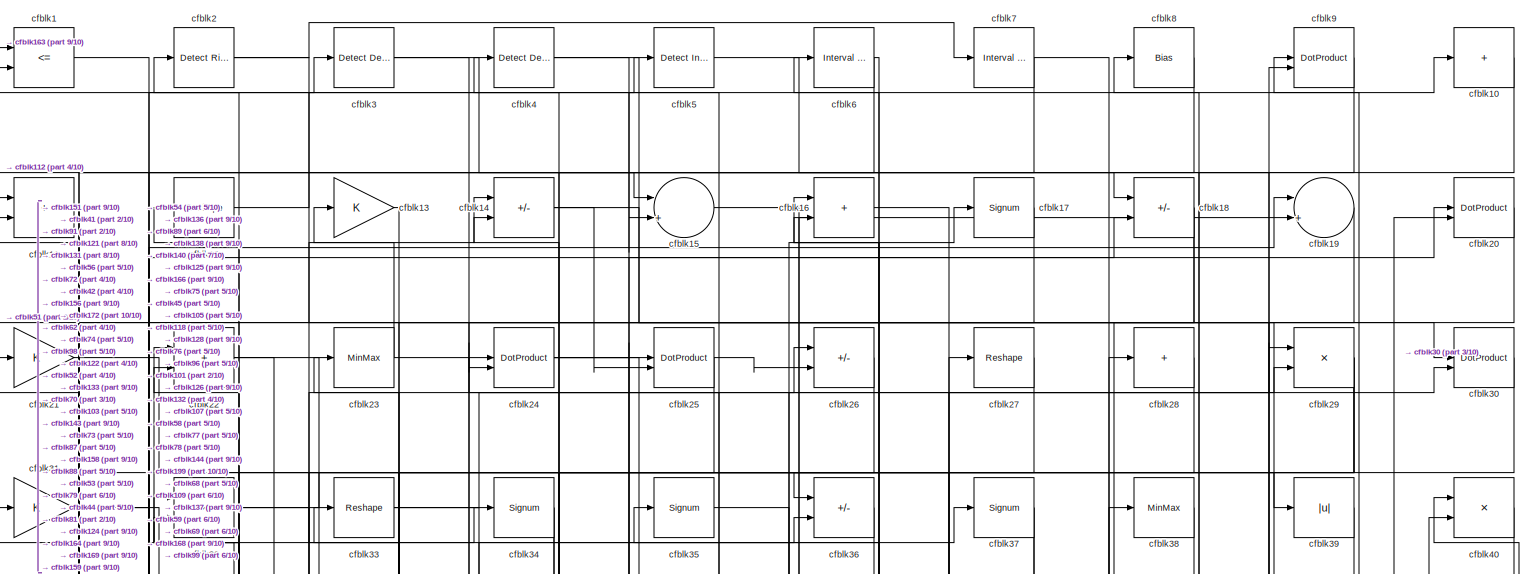
[diagram: root canvas - part 1/10, full width, top band]
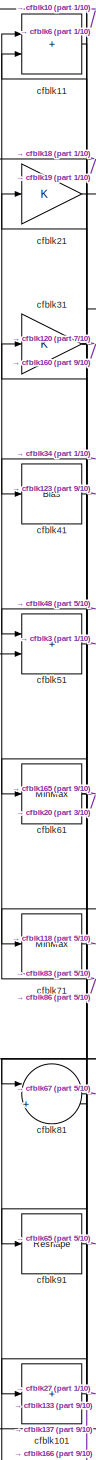
[diagram: root canvas - part 2/10, top left region]
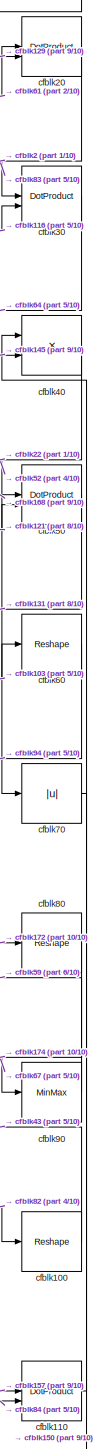
[diagram: root canvas - part 3/10, top right region]
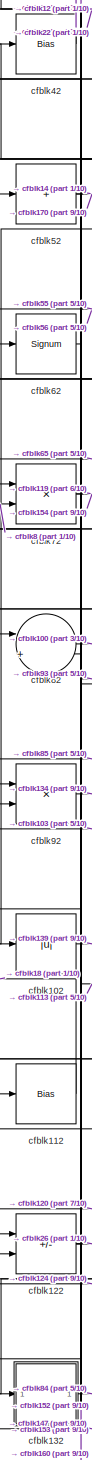
[diagram: root canvas - part 4/10, middle left region]
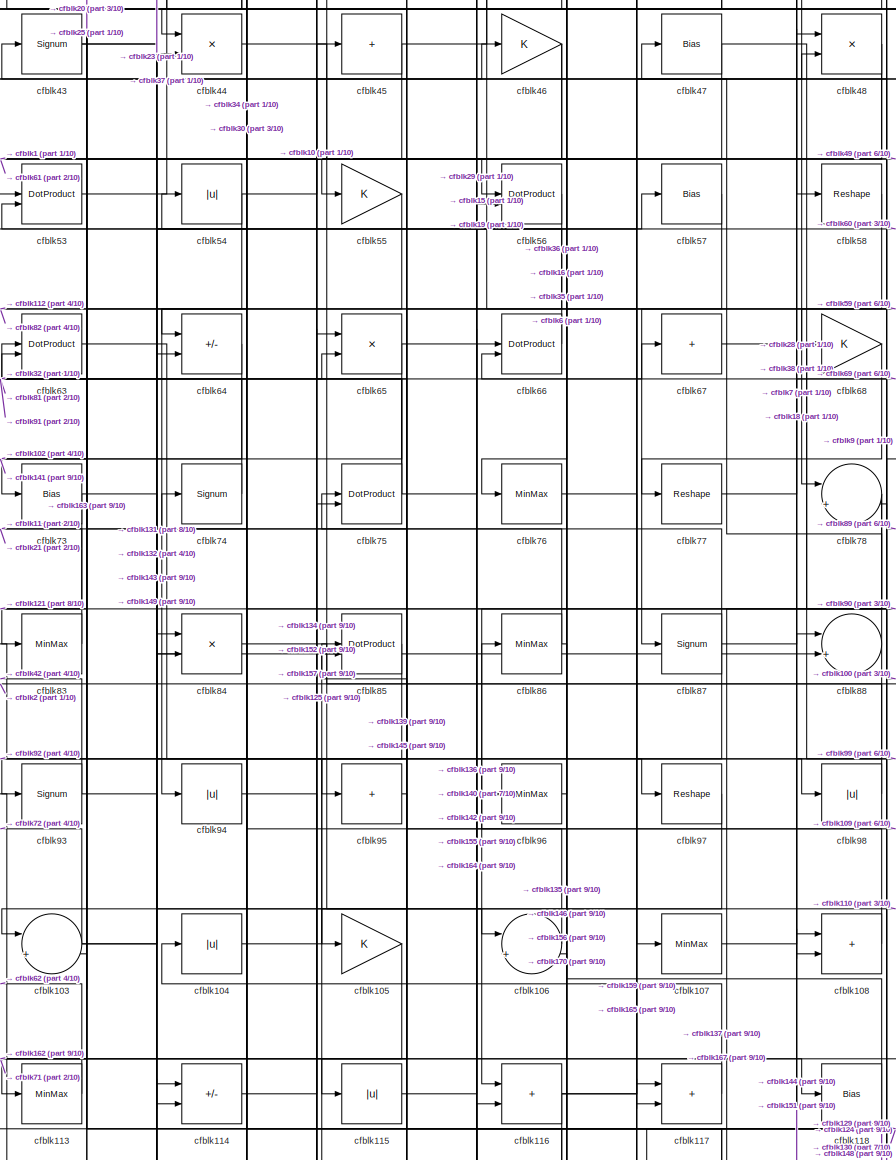
[diagram: root canvas - part 5/10, central region]
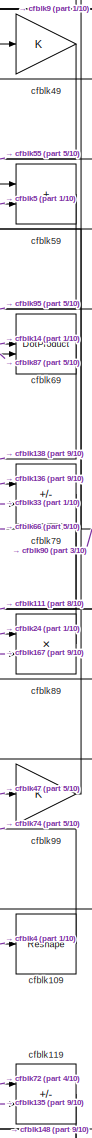
[diagram: root canvas - part 6/10, middle right region]
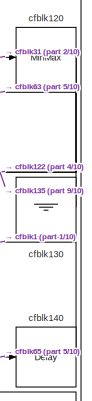
[diagram: root canvas - part 7/10, middle right region]
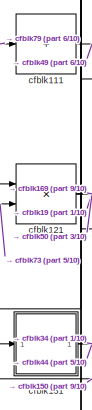
[diagram: root canvas - part 8/10, middle left region]
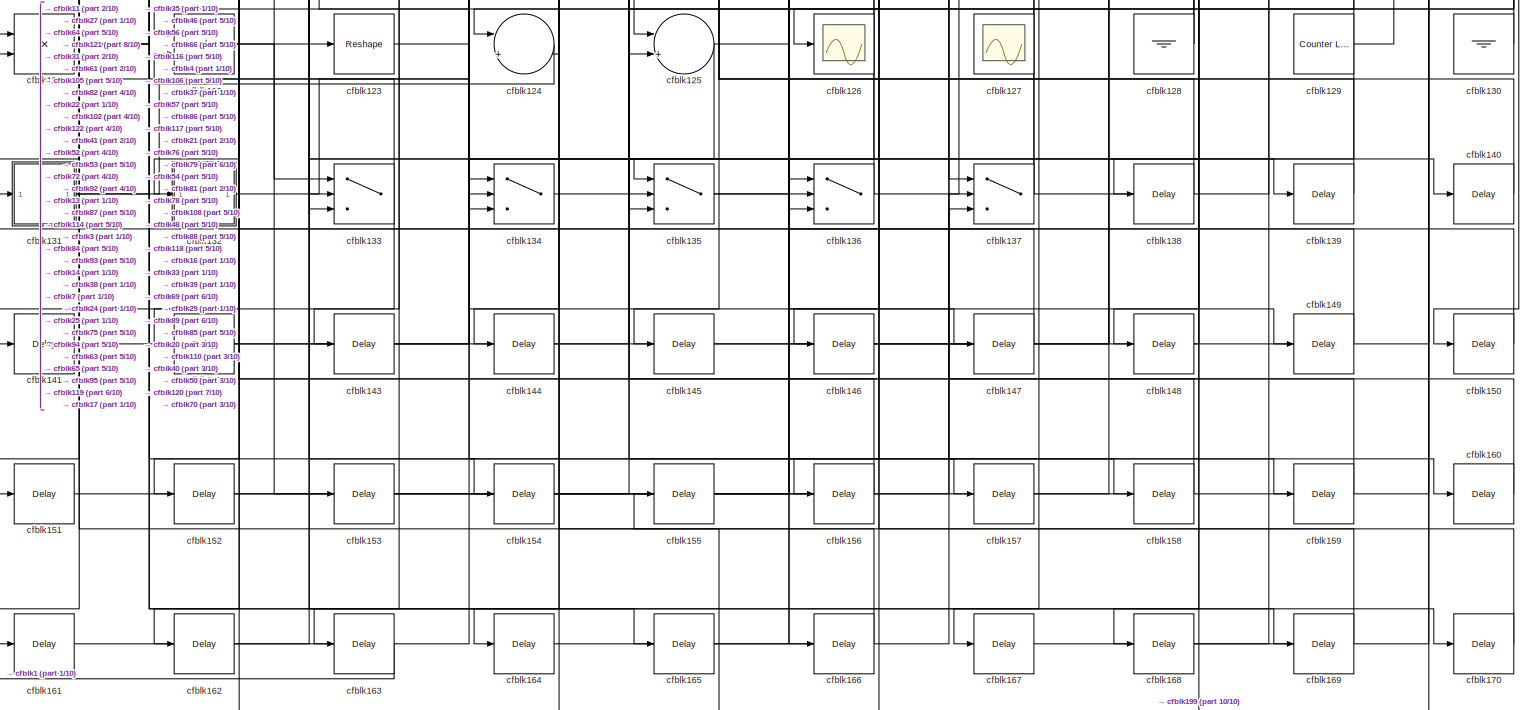
[diagram: root canvas - part 9/10, full width, bottom band]
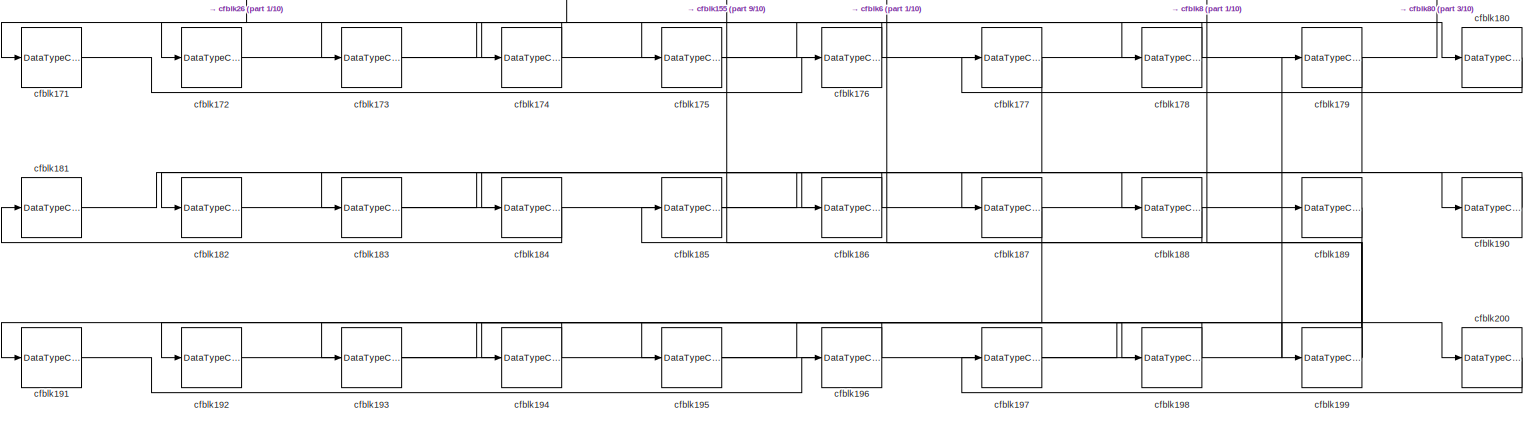
[diagram: root canvas - part 10/10, full width, bottom band]
MODEL slx_6bec59f7f15e
KIND model
CONFIG AbsTol = auto
CONFIG EnableMultiTasking = off
CONFIG FixedStep = auto
CONFIG MaxStep = auto
CONFIG MinStep = auto
CONFIG RelTol = 1e-3
CONFIG SampleTimeConstraint = Unconstrained
CONFIG SolverName = VariableStepAuto
CONFIG StartTime = 0.0
CONFIG StopTime = 10.0
BLOCK [RelationalOperator] cfblk1
  InputSameDT = off
  Operator = <=
  OutDataTypeStr = boolean
BLOCK [Sum] cfblk10
  IconShape = rectangular
  Inputs = +
BLOCK [Reshape] cfblk100
BLOCK [Sum] cfblk101
  IconShape = rectangular
  Inputs = +
BLOCK [Abs] cfblk102
  SaturateOnIntegerOverflow = off
BLOCK [Sum] cfblk103
  Inputs = |++
BLOCK [Abs] cfblk104
  SaturateOnIntegerOverflow = off
BLOCK [Gain] cfblk105
BLOCK [Sum] cfblk106
  Inputs = |++
BLOCK [MinMax] cfblk107
BLOCK [Sum] cfblk108
  IconShape = rectangular
BLOCK [Reshape] cfblk109
BLOCK [Sum] cfblk11
  IconShape = rectangular
BLOCK [DotProduct] cfblk110
  OutDataTypeStr = Inherit: Inherit via internal rule
BLOCK [Sum] cfblk111
  IconShape = rectangular
  Inputs = +
BLOCK [Bias] cfblk112
  Bias = 0.0
  SaturateOnIntegerOverflow = off
BLOCK [MinMax] cfblk113
BLOCK [Sum] cfblk114
  IconShape = rectangular
  Inputs = +-
BLOCK [Abs] cfblk115
  SaturateOnIntegerOverflow = off
BLOCK [Sum] cfblk116
  IconShape = rectangular
BLOCK [Sum] cfblk117
  IconShape = rectangular
BLOCK [Bias] cfblk118
  Bias = 0.0
  SaturateOnIntegerOverflow = off
BLOCK [Sum] cfblk119
  IconShape = rectangular
  Inputs = +-
BLOCK [Reshape] cfblk12
BLOCK [MinMax] cfblk120
BLOCK [Product] cfblk121
  Inputs = */
  RndMeth = Zero
  SaturateOnIntegerOverflow = on
BLOCK [Sum] cfblk122
  IconShape = rectangular
  Inputs = +-
BLOCK [Reshape] cfblk123
BLOCK [Sum] cfblk124
  Inputs = |++
BLOCK [Sum] cfblk125
  Inputs = |++
BLOCK [Scope] cfblk126
  Floating = off
  NumInputPorts = 1
  ScopeSpecificationString = Simulink.scopes.TimeScopeBlockCfg('CurrentConfiguration', extmgr.ConfigurationSet(extmgr.Configuration('Core','General UI',true),extmgr.Configuration('Core','Source UI',true),extmgr.Configuration('Sources','WiredSimulink',true,'DataLoggingVariableName','ScopeData2','DataLoggingSaveFormat','Array','DataLoggingLimitDataPoints',true,'DataLoggingDecimation','1'),extmgr.Configuration('Visuals','Time Do...<+868ch>
BLOCK [Scope] cfblk127
  Floating = on
  NumInputPorts = 1
  ScopeSpecificationString = Simulink.scopes.TimeScopeBlockCfg('CurrentConfiguration', extmgr.ConfigurationSet(extmgr.Configuration('Core','General UI',true,'FigureColor',[0.156862745098039 0.156862745098039 0.156862745098039]),extmgr.Configuration('Core','Source UI',true),extmgr.Configuration('Sources','WiredSimulink',true,'DataLoggingVariableName','ScopeData1','DataLoggingSaveFormat','StructureWithTime','DataLoggingLimitDat...<+2713ch>
BLOCK [Ground] cfblk128
BLOCK [Reference] cfblk129  REF=hdlsllib/Sources/Counter
Limited
  SourceBlock = hdlsllib/Sources/Counter\nLimited
  SourceType = Counter Limited
BLOCK [Gain] cfblk13
BLOCK [Ground] cfblk130
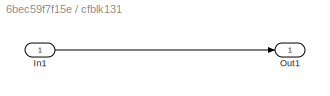
BLOCK [SubSystem] cfblk131
  LibrarySourceBlock = hdlsllib/Ports &\nSubsystems/Subsystem
BLOCK [Inport] cfblk131/In1
BLOCK [Outport] cfblk131/Out1
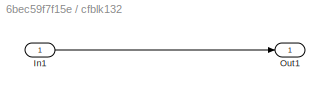
BLOCK [SubSystem] cfblk132
  LibrarySourceBlock = hdlsllib/Ports &\nSubsystems/Subsystem
BLOCK [Inport] cfblk132/In1
BLOCK [Outport] cfblk132/Out1
BLOCK [Switch] cfblk133
  InputSameDT = off
  SaturateOnIntegerOverflow = off
BLOCK [Switch] cfblk134
  InputSameDT = off
  SaturateOnIntegerOverflow = off
BLOCK [Switch] cfblk135
  InputSameDT = off
  SaturateOnIntegerOverflow = off
BLOCK [Switch] cfblk136
  InputSameDT = off
  SaturateOnIntegerOverflow = off
BLOCK [Switch] cfblk137
  InputSameDT = off
  SaturateOnIntegerOverflow = off
BLOCK [Delay] cfblk138
  InputPortMap = u0
  SampleTime = 1
BLOCK [Delay] cfblk139
  InputPortMap = u0
  SampleTime = 1
BLOCK [Sum] cfblk14
  IconShape = rectangular
  Inputs = +-
BLOCK [Delay] cfblk140
  InputPortMap = u0
  SampleTime = 1
BLOCK [Delay] cfblk141
  InputPortMap = u0
  SampleTime = 1
BLOCK [Delay] cfblk142
  InputPortMap = u0
  SampleTime = 1
BLOCK [Delay] cfblk143
  InputPortMap = u0
  SampleTime = 1
BLOCK [Delay] cfblk144
  InputPortMap = u0
  SampleTime = 1
BLOCK [Delay] cfblk145
  InputPortMap = u0
  SampleTime = 1
BLOCK [Delay] cfblk146
  InputPortMap = u0
  SampleTime = 1
BLOCK [Delay] cfblk147
  InputPortMap = u0
  SampleTime = 1
BLOCK [Delay] cfblk148
  InputPortMap = u0
  SampleTime = 1
BLOCK [Delay] cfblk149
  InputPortMap = u0
  SampleTime = 1
BLOCK [Sum] cfblk15
  Inputs = |++
BLOCK [Delay] cfblk150
  InputPortMap = u0
  SampleTime = 1
BLOCK [Delay] cfblk151
  InputPortMap = u0
  SampleTime = 1
BLOCK [Delay] cfblk152
  InputPortMap = u0
  SampleTime = 1
BLOCK [Delay] cfblk153
  InputPortMap = u0
  SampleTime = 1
BLOCK [Delay] cfblk154
  InputPortMap = u0
  SampleTime = 1
BLOCK [Delay] cfblk155
  InputPortMap = u0
  SampleTime = 1
BLOCK [Delay] cfblk156
  InputPortMap = u0
  SampleTime = 1
BLOCK [Delay] cfblk157
  InputPortMap = u0
  SampleTime = 1
BLOCK [Delay] cfblk158
  InputPortMap = u0
  SampleTime = 1
BLOCK [Delay] cfblk159
  InputPortMap = u0
  SampleTime = 1
BLOCK [Sum] cfblk16
  IconShape = rectangular
BLOCK [Delay] cfblk160
  InputPortMap = u0
  SampleTime = 1
BLOCK [Delay] cfblk161
  InputPortMap = u0
  SampleTime = 1
BLOCK [Delay] cfblk162
  InputPortMap = u0
  SampleTime = 1
BLOCK [Delay] cfblk163
  InputPortMap = u0
  SampleTime = 1
BLOCK [Delay] cfblk164
  InputPortMap = u0
  SampleTime = 1
BLOCK [Delay] cfblk165
  InputPortMap = u0
  SampleTime = 1
BLOCK [Delay] cfblk166
  InputPortMap = u0
  SampleTime = 1
BLOCK [Delay] cfblk167
  InputPortMap = u0
  SampleTime = 1
BLOCK [Delay] cfblk168
  InputPortMap = u0
  SampleTime = 1
BLOCK [Delay] cfblk169
  InputPortMap = u0
  SampleTime = 1
BLOCK [Signum] cfblk17
BLOCK [Delay] cfblk170
  InputPortMap = u0
  SampleTime = 1
BLOCK [DataTypeConversion] cfblk171
  RndMeth = Floor
  SaturateOnIntegerOverflow = off
BLOCK [DataTypeConversion] cfblk172
  OutDataTypeStr = uint8
  RndMeth = Floor
  SaturateOnIntegerOverflow = off
BLOCK [DataTypeConversion] cfblk173
  RndMeth = Floor
  SaturateOnIntegerOverflow = off
BLOCK [DataTypeConversion] cfblk174
  OutDataTypeStr = uint8
  RndMeth = Floor
  SaturateOnIntegerOverflow = off
BLOCK [DataTypeConversion] cfblk175
  RndMeth = Floor
  SaturateOnIntegerOverflow = off
BLOCK [DataTypeConversion] cfblk176
  OutDataTypeStr = uint8
  RndMeth = Floor
  SaturateOnIntegerOverflow = off
BLOCK [DataTypeConversion] cfblk177
  RndMeth = Floor
  SaturateOnIntegerOverflow = off
BLOCK [DataTypeConversion] cfblk178
  OutDataTypeStr = uint8
  RndMeth = Floor
  SaturateOnIntegerOverflow = off
BLOCK [DataTypeConversion] cfblk179
  RndMeth = Floor
  SaturateOnIntegerOverflow = off
BLOCK [Sum] cfblk18
  IconShape = rectangular
  Inputs = +-
BLOCK [DataTypeConversion] cfblk180
  OutDataTypeStr = uint8
  RndMeth = Floor
  SaturateOnIntegerOverflow = off
BLOCK [DataTypeConversion] cfblk181
  RndMeth = Floor
  SaturateOnIntegerOverflow = off
BLOCK [DataTypeConversion] cfblk182
  OutDataTypeStr = uint8
  RndMeth = Floor
  SaturateOnIntegerOverflow = off
BLOCK [DataTypeConversion] cfblk183
  RndMeth = Floor
  SaturateOnIntegerOverflow = off
BLOCK [DataTypeConversion] cfblk184
  OutDataTypeStr = uint8
  RndMeth = Floor
  SaturateOnIntegerOverflow = off
BLOCK [DataTypeConversion] cfblk185
  RndMeth = Floor
  SaturateOnIntegerOverflow = off
BLOCK [DataTypeConversion] cfblk186
  OutDataTypeStr = uint8
  RndMeth = Floor
  SaturateOnIntegerOverflow = off
BLOCK [DataTypeConversion] cfblk187
  RndMeth = Floor
  SaturateOnIntegerOverflow = off
BLOCK [DataTypeConversion] cfblk188
  OutDataTypeStr = uint8
  RndMeth = Floor
  SaturateOnIntegerOverflow = off
BLOCK [DataTypeConversion] cfblk189
  RndMeth = Floor
  SaturateOnIntegerOverflow = off
BLOCK [Sum] cfblk19
  Inputs = |++
BLOCK [DataTypeConversion] cfblk190
  OutDataTypeStr = uint8
  RndMeth = Floor
  SaturateOnIntegerOverflow = off
BLOCK [DataTypeConversion] cfblk191
  RndMeth = Floor
  SaturateOnIntegerOverflow = off
BLOCK [DataTypeConversion] cfblk192
  OutDataTypeStr = uint8
  RndMeth = Floor
  SaturateOnIntegerOverflow = off
BLOCK [DataTypeConversion] cfblk193
  RndMeth = Floor
  SaturateOnIntegerOverflow = off
BLOCK [DataTypeConversion] cfblk194
  OutDataTypeStr = uint8
  RndMeth = Floor
  SaturateOnIntegerOverflow = off
BLOCK [DataTypeConversion] cfblk195
  RndMeth = Floor
  SaturateOnIntegerOverflow = off
BLOCK [DataTypeConversion] cfblk196
  OutDataTypeStr = uint8
  RndMeth = Floor
  SaturateOnIntegerOverflow = off
BLOCK [DataTypeConversion] cfblk197
  RndMeth = Floor
  SaturateOnIntegerOverflow = off
BLOCK [DataTypeConversion] cfblk198
  OutDataTypeStr = uint8
  RndMeth = Floor
  SaturateOnIntegerOverflow = off
BLOCK [DataTypeConversion] cfblk199
  RndMeth = Floor
  SaturateOnIntegerOverflow = off
BLOCK [Reference] cfblk2  REF=hdlsllib/Logic and Bit
Operations/Detect Rise
Nonnegative
  SourceBlock = hdlsllib/Logic and Bit\nOperations/Detect Rise\nNonnegative
  SourceType = Detect Rise Nonnegative
BLOCK [DotProduct] cfblk20
  OutDataTypeStr = Inherit: Inherit via internal rule
BLOCK [DataTypeConversion] cfblk200
  OutDataTypeStr = uint8
  RndMeth = Floor
  SaturateOnIntegerOverflow = off
BLOCK [Gain] cfblk21
BLOCK [Sum] cfblk22
  IconShape = rectangular
BLOCK [MinMax] cfblk23
BLOCK [DotProduct] cfblk24
  OutDataTypeStr = Inherit: Inherit via internal rule
BLOCK [DotProduct] cfblk25
  OutDataTypeStr = Inherit: Inherit via internal rule
BLOCK [Sum] cfblk26
  IconShape = rectangular
  Inputs = +-
BLOCK [Reshape] cfblk27
BLOCK [Sum] cfblk28
  IconShape = rectangular
  Inputs = +
BLOCK [Product] cfblk29
  Inputs = */
  RndMeth = Zero
  SaturateOnIntegerOverflow = on
BLOCK [Reference] cfblk3  REF=simulink/Logic and Bit
Operations/Detect
Decrease
  LibrarySourceBlock = hdlsllib/Logic and Bit\nOperations/Detect\nDecrease
  SourceBlock = simulink/Logic and Bit\nOperations/Detect\nDecrease
  SourceType = Detect Decrease
BLOCK [DotProduct] cfblk30
  OutDataTypeStr = Inherit: Inherit via internal rule
BLOCK [Gain] cfblk31
BLOCK [Product] cfblk32
  Inputs = */
  RndMeth = Zero
  SaturateOnIntegerOverflow = on
BLOCK [Reshape] cfblk33
BLOCK [Signum] cfblk34
BLOCK [Signum] cfblk35
BLOCK [Sum] cfblk36
  IconShape = rectangular
  Inputs = +-
BLOCK [Signum] cfblk37
BLOCK [MinMax] cfblk38
BLOCK [Abs] cfblk39
  SaturateOnIntegerOverflow = off
BLOCK [Reference] cfblk4  REF=simulink/Logic and Bit
Operations/Detect
Decrease
  LibrarySourceBlock = hdlsllib/Logic and Bit\nOperations/Detect\nDecrease
  SourceBlock = simulink/Logic and Bit\nOperations/Detect\nDecrease
  SourceType = Detect Decrease
BLOCK [Product] cfblk40
  Inputs = */
  RndMeth = Zero
  SaturateOnIntegerOverflow = on
BLOCK [Bias] cfblk41
  Bias = 0.0
  SaturateOnIntegerOverflow = off
BLOCK [Bias] cfblk42
  Bias = 0.0
  SaturateOnIntegerOverflow = off
BLOCK [Signum] cfblk43
BLOCK [Product] cfblk44
  Inputs = */
  RndMeth = Zero
  SaturateOnIntegerOverflow = on
BLOCK [Sum] cfblk45
  IconShape = rectangular
  Inputs = +
BLOCK [Gain] cfblk46
BLOCK [Bias] cfblk47
  Bias = 0.0
  SaturateOnIntegerOverflow = off
BLOCK [Product] cfblk48
  Inputs = */
  RndMeth = Zero
  SaturateOnIntegerOverflow = on
BLOCK [Gain] cfblk49
BLOCK [Reference] cfblk5  REF=simulink/Logic and Bit
Operations/Detect
Increase
  LibrarySourceBlock = hdlsllib/Logic and Bit\nOperations/Detect\nIncrease
  SourceBlock = simulink/Logic and Bit\nOperations/Detect\nIncrease
  SourceType = Detect Increase
BLOCK [DotProduct] cfblk50
  OutDataTypeStr = Inherit: Inherit via internal rule
BLOCK [Sum] cfblk51
  IconShape = rectangular
BLOCK [Sum] cfblk52
  IconShape = rectangular
  Inputs = +
BLOCK [DotProduct] cfblk53
  OutDataTypeStr = Inherit: Inherit via internal rule
BLOCK [Abs] cfblk54
  SaturateOnIntegerOverflow = off
BLOCK [Gain] cfblk55
BLOCK [DotProduct] cfblk56
  OutDataTypeStr = Inherit: Inherit via internal rule
BLOCK [Bias] cfblk57
  Bias = 0.0
  SaturateOnIntegerOverflow = off
BLOCK [Reshape] cfblk58
BLOCK [Sum] cfblk59
  IconShape = rectangular
BLOCK [Reference] cfblk6  REF=hdlsllib/Logic and Bit
Operations/Interval Test
  SourceBlock = hdlsllib/Logic and Bit\nOperations/Interval Test
  SourceType = Interval Test
BLOCK [Reshape] cfblk60
BLOCK [MinMax] cfblk61
BLOCK [Signum] cfblk62
BLOCK [DotProduct] cfblk63
  OutDataTypeStr = Inherit: Inherit via internal rule
BLOCK [Sum] cfblk64
  IconShape = rectangular
  Inputs = +-
BLOCK [Product] cfblk65
  Inputs = */
  RndMeth = Zero
  SaturateOnIntegerOverflow = on
BLOCK [DotProduct] cfblk66
  OutDataTypeStr = Inherit: Inherit via internal rule
BLOCK [Sum] cfblk67
  IconShape = rectangular
  Inputs = +
BLOCK [Gain] cfblk68
BLOCK [DotProduct] cfblk69
  OutDataTypeStr = Inherit: Inherit via internal rule
BLOCK [Reference] cfblk7  REF=hdlsllib/Logic and Bit
Operations/Interval Test
  SourceBlock = hdlsllib/Logic and Bit\nOperations/Interval Test
  SourceType = Interval Test
BLOCK [Abs] cfblk70
  SaturateOnIntegerOverflow = off
BLOCK [MinMax] cfblk71
BLOCK [Product] cfblk72
  Inputs = */
  RndMeth = Zero
  SaturateOnIntegerOverflow = on
BLOCK [Bias] cfblk73
  Bias = 0.0
  SaturateOnIntegerOverflow = off
BLOCK [Signum] cfblk74
BLOCK [DotProduct] cfblk75
  OutDataTypeStr = Inherit: Inherit via internal rule
BLOCK [MinMax] cfblk76
BLOCK [Reshape] cfblk77
BLOCK [Sum] cfblk78
  Inputs = |++
BLOCK [Sum] cfblk79
  IconShape = rectangular
  Inputs = +-
BLOCK [Bias] cfblk8
  Bias = 0.0
  SaturateOnIntegerOverflow = off
BLOCK [Reshape] cfblk80
BLOCK [Sum] cfblk81
  Inputs = |++
BLOCK [Sum] cfblk82
  Inputs = |++
BLOCK [MinMax] cfblk83
BLOCK [Product] cfblk84
  Inputs = */
  RndMeth = Zero
  SaturateOnIntegerOverflow = on
BLOCK [DotProduct] cfblk85
  OutDataTypeStr = Inherit: Inherit via internal rule
BLOCK [MinMax] cfblk86
BLOCK [Signum] cfblk87
BLOCK [Sum] cfblk88
  Inputs = |++
BLOCK [Product] cfblk89
  Inputs = */
  RndMeth = Zero
  SaturateOnIntegerOverflow = on
BLOCK [DotProduct] cfblk9
  OutDataTypeStr = Inherit: Inherit via internal rule
BLOCK [MinMax] cfblk90
BLOCK [Reshape] cfblk91
BLOCK [Product] cfblk92
  Inputs = */
  RndMeth = Zero
  SaturateOnIntegerOverflow = on
BLOCK [Signum] cfblk93
BLOCK [Abs] cfblk94
  SaturateOnIntegerOverflow = off
BLOCK [Sum] cfblk95
  IconShape = rectangular
  Inputs = +
BLOCK [MinMax] cfblk96
BLOCK [Reshape] cfblk97
BLOCK [Abs] cfblk98
  SaturateOnIntegerOverflow = off
BLOCK [Gain] cfblk99
LINE cfblk100:1 -> cfblk43:1
LINE cfblk101:1 -> cfblk27:1
LINE cfblk102:1 -> cfblk139:1
NET cfblk103:1 -> cfblk57:1, cfblk60:1, cfblk72:1
LINE cfblk104:1 -> cfblk85:1
LINE cfblk105:1 -> cfblk162:1
LINE cfblk106:1 -> cfblk75:1
LINE cfblk107:1 -> cfblk28:1
LINE cfblk108:1 -> cfblk86:1
LINE cfblk109:1 -> cfblk74:1
LINE cfblk10:1 -> cfblk41:1
LINE cfblk110:1 -> cfblk40:1
LINE cfblk111:1 -> cfblk49:1
LINE cfblk112:1 -> cfblk18:1
LINE cfblk113:1 -> cfblk62:1
LINE cfblk114:1 -> cfblk45:1
LINE cfblk115:1 -> cfblk96:1
NET cfblk116:1 -> cfblk135:3, cfblk30:2, cfblk48:2
LINE cfblk117:1 -> cfblk104:1
NET cfblk118:1 -> cfblk124:2, cfblk35:1
LINE cfblk119:1 -> cfblk148:1
LINE cfblk11:1 -> cfblk71:1
NET cfblk120:1 -> cfblk122:1, cfblk135:2
NET cfblk121:1 -> cfblk169:1, cfblk19:1, cfblk50:2
NET cfblk122:1 -> cfblk152:1, cfblk153:1, cfblk26:1
LINE cfblk123:1 -> cfblk135:1
LINE cfblk124:1 -> cfblk122:2
NET cfblk125:1 -> cfblk133:2, cfblk17:1
NET cfblk128:1 -> cfblk16:2, cfblk33:1
NET cfblk129:1 -> cfblk134:3, cfblk20:2, cfblk85:2
LINE cfblk12:1 -> cfblk5:1
LINE cfblk130:1 -> cfblk63:1
LINE cfblk131/In1:1 -> cfblk131/Out1:1
NET cfblk131:1 -> cfblk34:1, cfblk44:2
LINE cfblk132/In1:1 -> cfblk132/Out1:1
LINE cfblk132:1 -> cfblk84:2
NET cfblk133:1 -> cfblk161:1, cfblk31:1
LINE cfblk134:1 -> cfblk46:1
NET cfblk135:1 -> cfblk119:2, cfblk147:1
NET cfblk136:1 -> cfblk4:1, cfblk79:1
NET cfblk137:1 -> cfblk29:1, cfblk54:1, cfblk81:2
LINE cfblk138:1 -> cfblk24:1
LINE cfblk139:1 -> cfblk65:1
LINE cfblk13:1 -> cfblk143:1
LINE cfblk140:1 -> cfblk1:2
LINE cfblk141:1 -> cfblk114:1
LINE cfblk142:1 -> cfblk125:2
LINE cfblk143:1 -> cfblk84:1
LINE cfblk144:1 -> cfblk88:1
LINE cfblk145:1 -> cfblk40:2
LINE cfblk146:1 -> cfblk108:1
LINE cfblk147:1 -> cfblk82:2
LINE cfblk148:1 -> cfblk78:2
LINE cfblk149:1 -> cfblk66:1
NET cfblk14:1 -> cfblk25:2, cfblk69:1
LINE cfblk150:1 -> cfblk121:1
LINE cfblk151:1 -> cfblk48:1
LINE cfblk152:1 -> cfblk75:2
LINE cfblk153:1 -> cfblk136:1
LINE cfblk154:1 -> cfblk137:3
LINE cfblk155:1 -> cfblk56:2
LINE cfblk156:1 -> cfblk22:2
LINE cfblk157:1 -> cfblk110:1
LINE cfblk158:1 -> cfblk137:2
LINE cfblk159:1 -> cfblk25:1
LINE cfblk15:1 -> cfblk107:1
LINE cfblk160:1 -> cfblk92:2
LINE cfblk161:1 -> cfblk134:2
LINE cfblk162:1 -> cfblk53:1
LINE cfblk163:1 -> cfblk1:1
LINE cfblk164:1 -> cfblk116:2
LINE cfblk165:1 -> cfblk117:1
LINE cfblk166:1 -> cfblk11:2
LINE cfblk167:1 -> cfblk89:2
LINE cfblk168:1 -> cfblk50:1
LINE cfblk169:1 -> cfblk14:2
LINE cfblk16:1 -> cfblk98:1
LINE cfblk170:1 -> cfblk106:2
LINE cfblk171:1 -> cfblk176:1
LINE cfblk172:1 -> cfblk80:1
LINE cfblk173:1 -> cfblk178:1
LINE cfblk174:1 -> cfblk171:1
LINE cfblk175:1 -> cfblk180:1
LINE cfblk176:1 -> cfblk173:1
LINE cfblk177:1 -> cfblk182:1
LINE cfblk178:1 -> cfblk175:1
LINE cfblk179:1 -> cfblk184:1
LINE cfblk17:1 -> cfblk24:2
LINE cfblk180:1 -> cfblk177:1
LINE cfblk181:1 -> cfblk186:1
LINE cfblk182:1 -> cfblk179:1
LINE cfblk183:1 -> cfblk188:1
LINE cfblk184:1 -> cfblk181:1
LINE cfblk185:1 -> cfblk190:1
LINE cfblk186:1 -> cfblk183:1
LINE cfblk187:1 -> cfblk192:1
LINE cfblk188:1 -> cfblk185:1
LINE cfblk189:1 -> cfblk194:1
NET cfblk18:1 -> cfblk51:2, cfblk78:1
LINE cfblk190:1 -> cfblk187:1
LINE cfblk191:1 -> cfblk196:1
LINE cfblk192:1 -> cfblk189:1
LINE cfblk193:1 -> cfblk198:1
LINE cfblk194:1 -> cfblk191:1
LINE cfblk195:1 -> cfblk200:1
LINE cfblk196:1 -> cfblk193:1
LINE cfblk197:1 -> cfblk199:1
LINE cfblk198:1 -> cfblk195:1
NET cfblk199:1 -> cfblk155:1, cfblk6:1, cfblk8:1
LINE cfblk19:1 -> cfblk91:1
LINE cfblk1:1 -> cfblk56:1
LINE cfblk200:1 -> cfblk197:1
LINE cfblk20:1 -> cfblk83:1
LINE cfblk21:1 -> cfblk137:1
NET cfblk22:1 -> cfblk133:1, cfblk70:1
NET cfblk23:1 -> cfblk13:1, cfblk88:2
NET cfblk24:1 -> cfblk136:2, cfblk18:2, cfblk89:1
NET cfblk25:1 -> cfblk26:2, cfblk73:1
LINE cfblk26:1 -> cfblk172:1
LINE cfblk27:1 -> cfblk151:1
LINE cfblk28:1 -> cfblk103:2
NET cfblk29:1 -> cfblk124:1, cfblk133:3, cfblk36:1
NET cfblk2:1 -> cfblk30:1, cfblk7:1
LINE cfblk30:1 -> cfblk64:1
NET cfblk31:1 -> cfblk101:1, cfblk120:1, cfblk160:1
NET cfblk32:1 -> cfblk36:2, cfblk39:1
NET cfblk33:1 -> cfblk79:2, cfblk9:2
NET cfblk34:1 -> cfblk44:1, cfblk81:1
LINE cfblk35:1 -> cfblk166:1
LINE cfblk36:1 -> cfblk105:1
NET cfblk37:1 -> cfblk126:1, cfblk132:1
LINE cfblk38:1 -> cfblk144:1
LINE cfblk39:1 -> cfblk168:1
NET cfblk3:1 -> cfblk158:1, cfblk15:1
LINE cfblk40:1 -> cfblk52:1
LINE cfblk41:1 -> cfblk123:1
LINE cfblk42:1 -> cfblk22:1
NET cfblk43:1 -> cfblk106:1, cfblk97:1
LINE cfblk44:1 -> cfblk117:2
NET cfblk45:1 -> cfblk19:2, cfblk64:2
NET cfblk46:1 -> cfblk136:3, cfblk142:1
NET cfblk47:1 -> cfblk113:1, cfblk99:1
NET cfblk48:1 -> cfblk115:1, cfblk61:1
LINE cfblk49:1 -> cfblk55:1
NET cfblk4:1 -> cfblk109:1, cfblk15:2
LINE cfblk50:1 -> cfblk131:1
LINE cfblk51:1 -> cfblk3:1
NET cfblk52:1 -> cfblk14:1, cfblk170:1
LINE cfblk53:1 -> cfblk37:1
NET cfblk54:1 -> cfblk10:1, cfblk93:1
LINE cfblk55:1 -> cfblk112:1
LINE cfblk56:1 -> cfblk82:1
LINE cfblk57:1 -> cfblk156:1
LINE cfblk58:1 -> cfblk87:1
LINE cfblk59:1 -> cfblk95:1
LINE cfblk5:1 -> cfblk59:2
LINE cfblk60:1 -> cfblk94:1
NET cfblk61:1 -> cfblk165:1, cfblk20:1
LINE cfblk62:1 -> cfblk12:1
LINE cfblk63:1 -> cfblk125:1
LINE cfblk64:1 -> cfblk141:1
NET cfblk65:1 -> cfblk102:1, cfblk140:1
LINE cfblk66:1 -> cfblk53:2
LINE cfblk67:1 -> cfblk90:1
LINE cfblk68:1 -> cfblk77:1
LINE cfblk69:1 -> cfblk138:1
NET cfblk6:1 -> cfblk51:1, cfblk76:1
LINE cfblk70:1 -> cfblk150:1
LINE cfblk71:1 -> cfblk118:1
NET cfblk72:1 -> cfblk119:1, cfblk154:1
NET cfblk73:1 -> cfblk114:2, cfblk121:2
LINE cfblk74:1 -> cfblk32:1
NET cfblk75:1 -> cfblk29:2, cfblk32:2, cfblk63:2
LINE cfblk76:1 -> cfblk159:1
LINE cfblk77:1 -> cfblk38:1
NET cfblk78:1 -> cfblk116:1, cfblk167:1
LINE cfblk79:1 -> cfblk111:1
NET cfblk7:1 -> cfblk164:1, cfblk58:1
LINE cfblk80:1 -> cfblk174:1
LINE cfblk81:1 -> cfblk67:1
LINE cfblk82:1 -> cfblk100:1
LINE cfblk83:1 -> cfblk11:1
LINE cfblk84:1 -> cfblk110:2
LINE cfblk85:1 -> cfblk92:1
NET cfblk86:1 -> cfblk146:1, cfblk21:1
NET cfblk87:1 -> cfblk163:1, cfblk23:1, cfblk69:2
NET cfblk88:1 -> cfblk108:2, cfblk47:1
LINE cfblk89:1 -> cfblk66:2
LINE cfblk8:1 -> cfblk72:2
LINE cfblk90:1 -> cfblk59:1
LINE cfblk91:1 -> cfblk65:2
LINE cfblk92:1 -> cfblk134:1
NET cfblk93:1 -> cfblk149:1, cfblk42:1
LINE cfblk94:1 -> cfblk157:1
LINE cfblk95:1 -> cfblk145:1
LINE cfblk96:1 -> cfblk16:1
LINE cfblk97:1 -> cfblk103:1
LINE cfblk98:1 -> cfblk2:1
LINE cfblk99:1 -> cfblk9:1
LINE cfblk9:1 -> cfblk68:1
note: NET lines group one-source signal fan-out (src -> all destinations, sorted); 1:1 wires keep LINE
